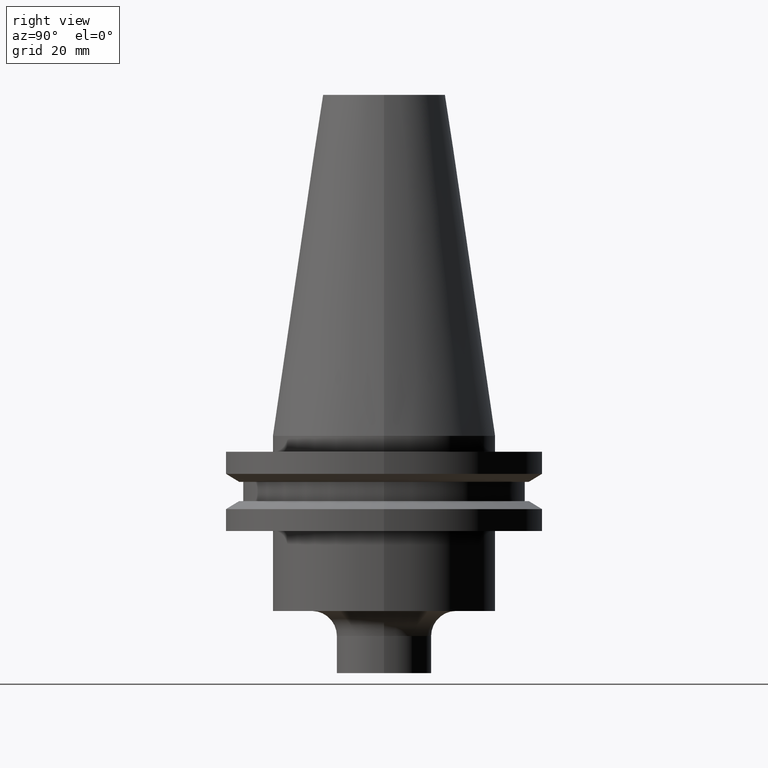
[diagram: clean part render]
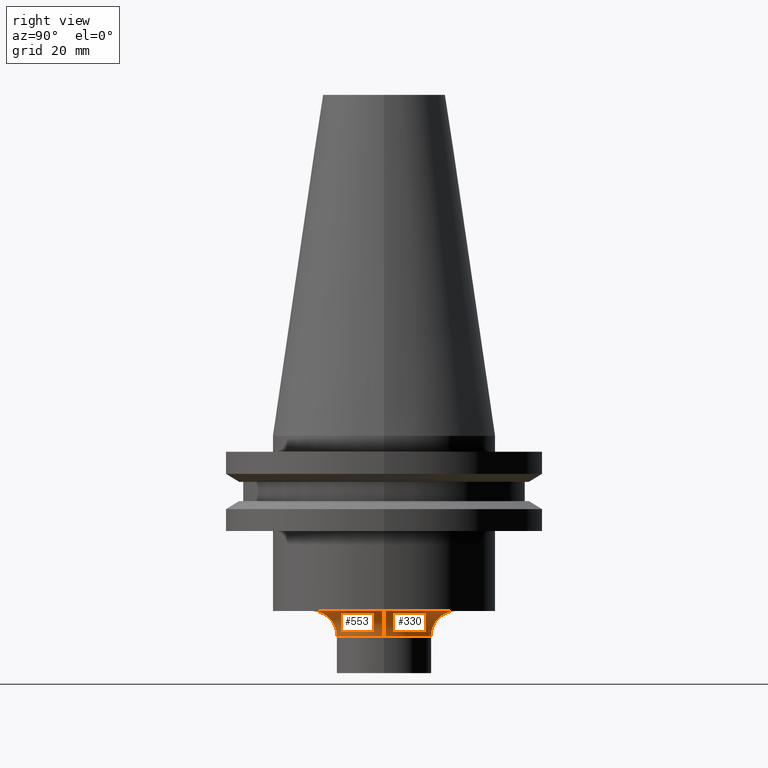
[diagram: same view with one multi-face feature highlighted, each face labeled with its STEP entity id]
A machine part, right view. The highlighted faces form ONE feature: a constant-radius fillet chain: 2 tangent blend faces with common blend radius 5 mm. The faces share edges in the B-rep.
Their STEP definitions:
[1] entity #330 (Torus):
#43 = CARTESIAN_POINT ( 'NONE',  ( 0.000000000000000000, 0.000000000000000000, -40.04999999999999716 ) ) ;
#112 = DIRECTION ( 'NONE',  ( -1.000000000000000000, 1.224646799147353454E-16, 0.000000000000000000 ) ) ;
#134 = EDGE_CURVE ( 'NONE', #290, #610, #316, .T. ) ;
#141 = FACE_OUTER_BOUND ( 'NONE', #766, .T. ) ;
#145 = DIRECTION ( 'NONE',  ( 1.000000000000000000, 0.000000000000000000, 0.000000000000000000 ) ) ;
#152 = CARTESIAN_POINT ( 'NONE',  ( -14.49999999999999822, 1.775737858763662015E-15, -40.04999999999999716 ) ) ;
#157 = VERTEX_POINT ( 'NONE', #431 ) ;
#160 = CARTESIAN_POINT ( 'NONE',  ( 0.000000000000000000, 0.000000000000000000, -40.04999999999999716 ) ) ;
#166 = ORIENTED_EDGE ( 'NONE', *, *, #475, .T. ) ;
#193 = CARTESIAN_POINT ( 'NONE',  ( 14.49999999999999822, 0.000000000000000000, -40.04999999999999716 ) ) ;
#202 = DIRECTION ( 'NONE',  ( 1.224646799147353207E-16, 1.000000000000000000, 0.000000000000000000 ) ) ;
#228 = DIRECTION ( 'NONE',  ( 0.000000000000000000, -1.000000000000000000, 0.000000000000000000 ) ) ;
#278 = EDGE_CURVE ( 'NONE', #290, #157, #721, .T. ) ;
#290 = VERTEX_POINT ( 'NONE', #460 ) ;
#313 = AXIS2_PLACEMENT_3D ( 'NONE', #160, #565, #328 ) ;
#316 = CIRCLE ( 'NONE', #727, 14.49999999999999822 ) ;
#328 = DIRECTION ( 'NONE',  ( 1.000000000000000000, 0.000000000000000000, 0.000000000000000000 ) ) ;
#330 = ADVANCED_FACE ( 'NONE', ( #141 ), #493, .F. ) ;
#399 = CARTESIAN_POINT ( 'NONE',  ( 0.000000000000000000, 0.000000000000000000, -35.04999999999999716 ) ) ;
#415 = CARTESIAN_POINT ( 'NONE',  ( -14.49999999999999822, 1.775737858763662015E-15, -35.04999999999999716 ) ) ;
#421 = ORIENTED_EDGE ( 'NONE', *, *, #278, .T. ) ;
#429 = CIRCLE ( 'NONE', #738, 9.499999999999998224 ) ;
#431 = CARTESIAN_POINT ( 'NONE',  ( 9.499999999999998224, 0.000000000000000000, -40.04999999999999716 ) ) ;
#460 = CARTESIAN_POINT ( 'NONE',  ( 14.49999999999999822, 0.000000000000000000, -35.04999999999999716 ) ) ;
#475 = EDGE_CURVE ( 'NONE', #157, #639, #429, .T. ) ;
#493 = TOROIDAL_SURFACE ( 'NONE', #313, 14.49999999999999822, 4.999999999999999112 ) ;
#502 = AXIS2_PLACEMENT_3D ( 'NONE', #152, #202, #112 ) ;
#504 = ORIENTED_EDGE ( 'NONE', *, *, #134, .F. ) ;
#536 = AXIS2_PLACEMENT_3D ( 'NONE', #193, #228, #578 ) ;
#565 = DIRECTION ( 'NONE',  ( -0.000000000000000000, -0.000000000000000000, 1.000000000000000000 ) ) ;
#578 = DIRECTION ( 'NONE',  ( 0.000000000000000000, 0.000000000000000000, -1.000000000000000000 ) ) ;
#610 = VERTEX_POINT ( 'NONE', #415 ) ;
#639 = VERTEX_POINT ( 'NONE', #759 ) ;
#659 = CIRCLE ( 'NONE', #502, 4.999999999999997335 ) ;
#672 = EDGE_CURVE ( 'NONE', #610, #639, #659, .T. ) ;
#700 = DIRECTION ( 'NONE',  ( 1.000000000000000000, 0.000000000000000000, 0.000000000000000000 ) ) ;
#707 = DIRECTION ( 'NONE',  ( -0.000000000000000000, -0.000000000000000000, 1.000000000000000000 ) ) ;
#721 = CIRCLE ( 'NONE', #536, 4.999999999999997335 ) ;
#727 = AXIS2_PLACEMENT_3D ( 'NONE', #399, #707, #145 ) ;
#738 = AXIS2_PLACEMENT_3D ( 'NONE', #43, #761, #700 ) ;
#751 = ORIENTED_EDGE ( 'NONE', *, *, #672, .F. ) ;
#759 = CARTESIAN_POINT ( 'NONE',  ( -9.499999999999998224, 1.163414459189985288E-15, -40.04999999999999716 ) ) ;
#761 = DIRECTION ( 'NONE',  ( -0.000000000000000000, -0.000000000000000000, 1.000000000000000000 ) ) ;
#766 = EDGE_LOOP ( 'NONE', ( #751, #504, #421, #166 ) ) ;
[2] entity #553 (Torus):
#23 = DIRECTION ( 'NONE',  ( -0.000000000000000000, -0.000000000000000000, 1.000000000000000000 ) ) ;
#55 = DIRECTION ( 'NONE',  ( 1.000000000000000000, 0.000000000000000000, 0.000000000000000000 ) ) ;
#62 = CIRCLE ( 'NONE', #763, 14.49999999999999822 ) ;
#84 = CARTESIAN_POINT ( 'NONE',  ( 0.000000000000000000, 0.000000000000000000, -40.04999999999999716 ) ) ;
#91 = CIRCLE ( 'NONE', #473, 9.499999999999998224 ) ;
#94 = DIRECTION ( 'NONE',  ( 1.000000000000000000, 0.000000000000000000, 0.000000000000000000 ) ) ;
#112 = DIRECTION ( 'NONE',  ( -1.000000000000000000, 1.224646799147353454E-16, 0.000000000000000000 ) ) ;
#122 = DIRECTION ( 'NONE',  ( -0.000000000000000000, -0.000000000000000000, 1.000000000000000000 ) ) ;
#146 = DIRECTION ( 'NONE',  ( 1.000000000000000000, 0.000000000000000000, 0.000000000000000000 ) ) ;
#152 = CARTESIAN_POINT ( 'NONE',  ( -14.49999999999999822, 1.775737858763662015E-15, -40.04999999999999716 ) ) ;
#157 = VERTEX_POINT ( 'NONE', #431 ) ;
#193 = CARTESIAN_POINT ( 'NONE',  ( 14.49999999999999822, 0.000000000000000000, -40.04999999999999716 ) ) ;
#202 = DIRECTION ( 'NONE',  ( 1.224646799147353207E-16, 1.000000000000000000, 0.000000000000000000 ) ) ;
#215 = DIRECTION ( 'NONE',  ( -0.000000000000000000, -0.000000000000000000, 1.000000000000000000 ) ) ;
#228 = DIRECTION ( 'NONE',  ( 0.000000000000000000, -1.000000000000000000, 0.000000000000000000 ) ) ;
#229 = AXIS2_PLACEMENT_3D ( 'NONE', #425, #122, #55 ) ;
#278 = EDGE_CURVE ( 'NONE', #290, #157, #721, .T. ) ;
#290 = VERTEX_POINT ( 'NONE', #460 ) ;
#326 = ORIENTED_EDGE ( 'NONE', *, *, #510, .T. ) ;
#366 = TOROIDAL_SURFACE ( 'NONE', #229, 14.49999999999999822, 4.999999999999999112 ) ;
#393 = EDGE_LOOP ( 'NONE', ( #649, #522, #326, #756 ) ) ;
#415 = CARTESIAN_POINT ( 'NONE',  ( -14.49999999999999822, 1.775737858763662015E-15, -35.04999999999999716 ) ) ;
#425 = CARTESIAN_POINT ( 'NONE',  ( 0.000000000000000000, 0.000000000000000000, -40.04999999999999716 ) ) ;
#431 = CARTESIAN_POINT ( 'NONE',  ( 9.499999999999998224, 0.000000000000000000, -40.04999999999999716 ) ) ;
#460 = CARTESIAN_POINT ( 'NONE',  ( 14.49999999999999822, 0.000000000000000000, -35.04999999999999716 ) ) ;
#473 = AXIS2_PLACEMENT_3D ( 'NONE', #84, #23, #94 ) ;
#502 = AXIS2_PLACEMENT_3D ( 'NONE', #152, #202, #112 ) ;
#510 = EDGE_CURVE ( 'NONE', #639, #157, #91, .T. ) ;
#522 = ORIENTED_EDGE ( 'NONE', *, *, #672, .T. ) ;
#536 = AXIS2_PLACEMENT_3D ( 'NONE', #193, #228, #578 ) ;
#553 = ADVANCED_FACE ( 'NONE', ( #590 ), #366, .F. ) ;
#578 = DIRECTION ( 'NONE',  ( 0.000000000000000000, 0.000000000000000000, -1.000000000000000000 ) ) ;
#590 = FACE_OUTER_BOUND ( 'NONE', #393, .T. ) ;
#610 = VERTEX_POINT ( 'NONE', #415 ) ;
#639 = VERTEX_POINT ( 'NONE', #759 ) ;
#649 = ORIENTED_EDGE ( 'NONE', *, *, #661, .F. ) ;
#659 = CIRCLE ( 'NONE', #502, 4.999999999999997335 ) ;
#661 = EDGE_CURVE ( 'NONE', #610, #290, #62, .T. ) ;
#672 = EDGE_CURVE ( 'NONE', #610, #639, #659, .T. ) ;
#698 = CARTESIAN_POINT ( 'NONE',  ( 0.000000000000000000, 0.000000000000000000, -35.04999999999999716 ) ) ;
#721 = CIRCLE ( 'NONE', #536, 4.999999999999997335 ) ;
#756 = ORIENTED_EDGE ( 'NONE', *, *, #278, .F. ) ;
#759 = CARTESIAN_POINT ( 'NONE',  ( -9.499999999999998224, 1.163414459189985288E-15, -40.04999999999999716 ) ) ;
#763 = AXIS2_PLACEMENT_3D ( 'NONE', #698, #215, #146 ) ;